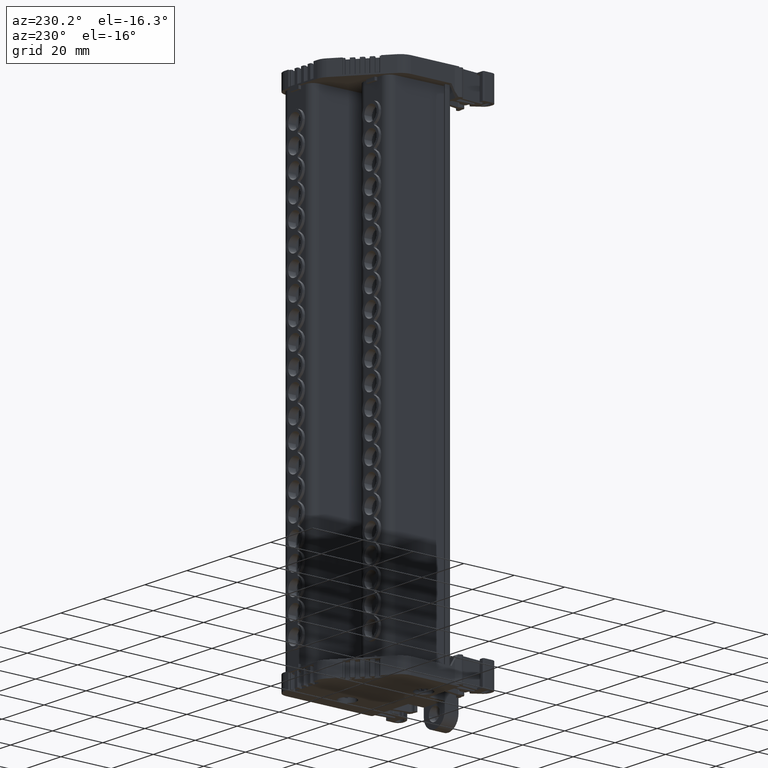
[diagram: clean part render]
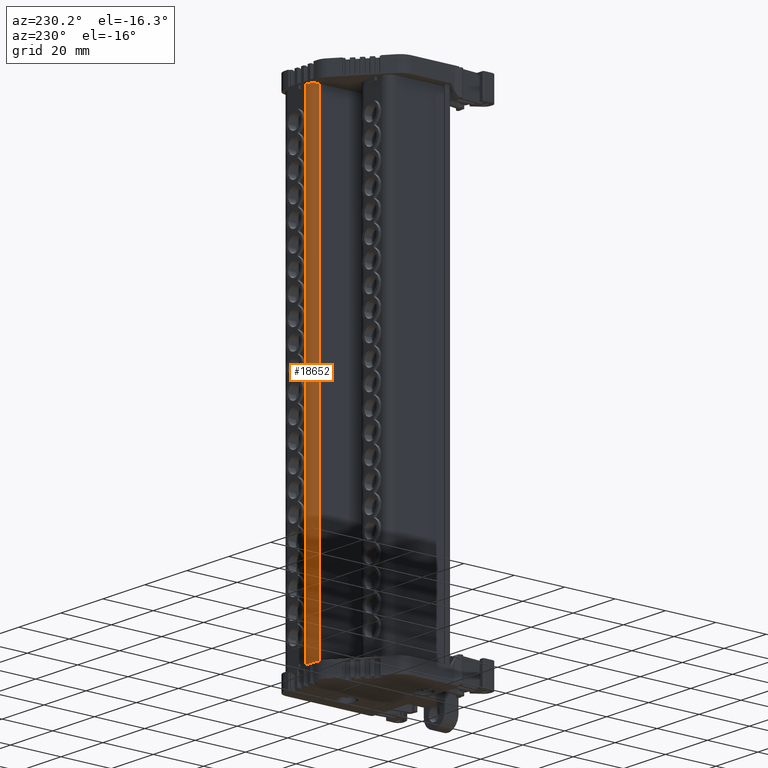
[diagram: same view with one face highlighted and labeled with its STEP entity id]
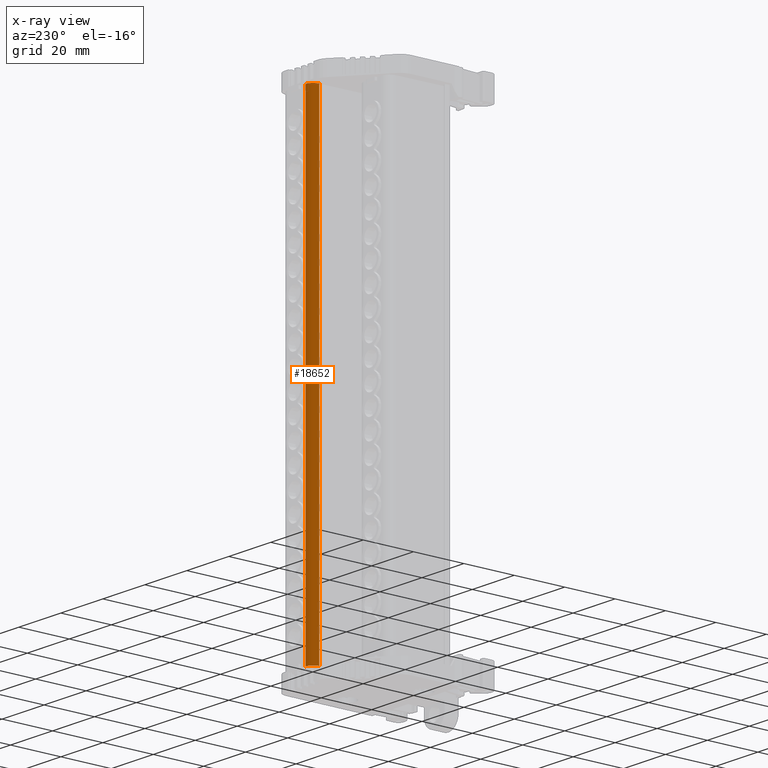
[diagram: x-ray of the same camera — body ghosted, the highlighted face saturated]
A machine part, auxiliary view. The second image highlights one B-rep face of the part: STEP entity #18652.
The next image is the same camera in x-ray: the body ghosted, the highlighted face saturated — about 0% of this face is hidden behind the body in this view.
In plain terms, the highlighted cylindrical surface (edge-blend (fillet) strip) has radius 2.9989 mm, axis along (-0, -0, -1).
Its self-contained STEP definition (entity closure, byte-faithful):
#11591 = VERTEX_POINT ( 'NONE', #64717 ) ;
#12539 = VERTEX_POINT ( 'NONE', #63000 ) ;
#14220 = VERTEX_POINT ( 'NONE', #63182 ) ;
#14293 = VERTEX_POINT ( 'NONE', #63264 ) ;
#15783 = EDGE_CURVE ( 'NONE', #11591, #14220, #71286, .T. ) ;
#15935 = EDGE_CURVE ( 'NONE', #12539, #11591, #69497, .T. ) ;
#18652 = ADVANCED_FACE ( 'NONE', ( #81984 ), #82006, .T. ) ;
#24660 = EDGE_CURVE ( 'NONE', #14293, #12539, #64580, .T. ) ;
#27248 = VECTOR ( 'NONE', #34134, 1000.000000000000000 ) ;
#31628 = EDGE_CURVE ( 'NONE', #14220, #14293, #34133, .T. ) ;
#34109 = CARTESIAN_POINT ( 'NONE',  ( -38.77832969250935200, 48.51556673506588200, -23.59855170598342500 ) ) ;
#34133 = LINE ( 'NONE', #34109, #27248 ) ;
#34134 = DIRECTION ( 'NONE',  ( -4.320873588066585300E-013, -1.604972357196100300E-014, -1.000000000000000000 ) ) ;
#38282 = EDGE_LOOP ( 'NONE', ( #67336, #67406, #67434, #67276 ) ) ;
#63000 = CARTESIAN_POINT ( 'NONE',  ( -41.77673668713116200, 45.56904048598932600, -36.09779384098879300 ) ) ;
#63182 = CARTESIAN_POINT ( 'NONE',  ( -38.77832972575449600, 48.51556673506890100, 148.9721892898911100 ) ) ;
#63264 = CARTESIAN_POINT ( 'NONE',  ( -38.77832972999942000, 48.51556673506624400, -36.09779384098943900 ) ) ;
#64580 = CIRCLE ( 'NONE', #64621, 2.998863636113985500 ) ;
#64621 = AXIS2_PLACEMENT_3D ( 'NONE', #90389, #90390, #90403 ) ;
#64717 = CARTESIAN_POINT ( 'NONE',  ( -41.77673668705123300, 45.56904048599011500, 148.9721892898924700 ) ) ;
#66255 = DIRECTION ( 'NONE',  ( -4.320873588066585300E-013, -1.604972357196100300E-014, -1.000000000000000000 ) ) ;
#66288 = DIRECTION ( 'NONE',  ( -1.000000000000000000, 0.0000000000000000000, 4.350021248798706800E-013 ) ) ;
#66318 = CARTESIAN_POINT ( 'NONE',  ( -38.77832979239398300, 45.51670309895466500, 148.9721892898911600 ) ) ;
#67276 = ORIENTED_EDGE ( 'NONE', *, *, #24660, .T. ) ;
#67336 = ORIENTED_EDGE ( 'NONE', *, *, #15935, .T. ) ;
#67406 = ORIENTED_EDGE ( 'NONE', *, *, #15783, .T. ) ;
#67434 = ORIENTED_EDGE ( 'NONE', *, *, #31628, .T. ) ;
#69468 = CARTESIAN_POINT ( 'NONE',  ( -41.77673668713146800, 45.56904048598887200, -36.79355170586848100 ) ) ;
#69497 = LINE ( 'NONE', #69468, #71307 ) ;
#69501 = DIRECTION ( 'NONE',  ( 4.316756871969225900E-013, -7.534927149487164700E-015, 1.000000000000000000 ) ) ;
#71286 = CIRCLE ( 'NONE', #71418, 2.998863636113985500 ) ;
#71307 = VECTOR ( 'NONE', #69501, 1000.000000000000000 ) ;
#71418 = AXIS2_PLACEMENT_3D ( 'NONE', #66318, #66255, #66288 ) ;
#81980 = DIRECTION ( 'NONE',  ( -4.320873588066585300E-013, -1.604972357196100300E-014, -1.000000000000000000 ) ) ;
#81984 = FACE_OUTER_BOUND ( 'NONE', #38282, .T. ) ;
#81990 = DIRECTION ( 'NONE',  ( -1.000000000000000000, 0.0000000000000000000, 4.315313632451908400E-013 ) ) ;
#81997 = CARTESIAN_POINT ( 'NONE',  ( -38.77832979246854700, 45.51670309895189300, -23.59855170598337900 ) ) ;
#82006 = CYLINDRICAL_SURFACE ( 'NONE', #83796, 2.998863636113985500 ) ;
#83796 = AXIS2_PLACEMENT_3D ( 'NONE', #81997, #81980, #81990 ) ;
#90389 = CARTESIAN_POINT ( 'NONE',  ( -38.77832979247394700, 45.51670309895169500, -36.09779384098938900 ) ) ;
#90390 = DIRECTION ( 'NONE',  ( 4.320873588066585300E-013, 1.604972357196100300E-014, 1.000000000000000000 ) ) ;
#90403 = DIRECTION ( 'NONE',  ( -1.000000000000000000, 2.313841089786546000E-015, 4.326882837900841200E-013 ) ) ;